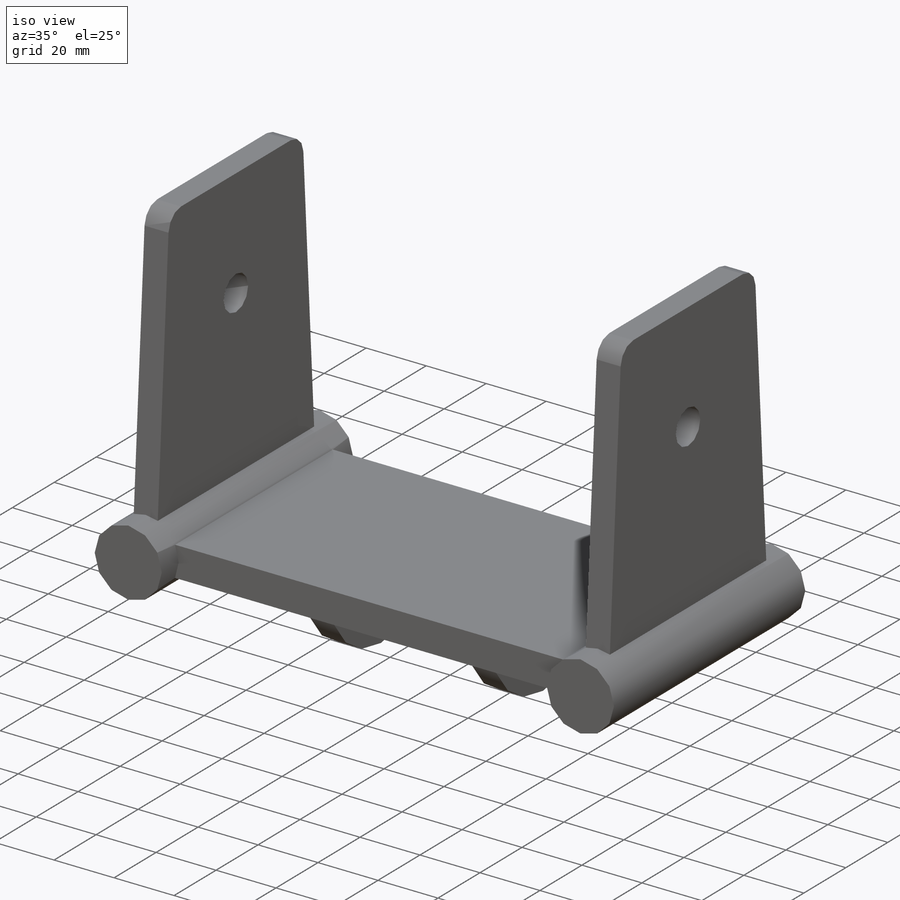
[diagram: iso view]
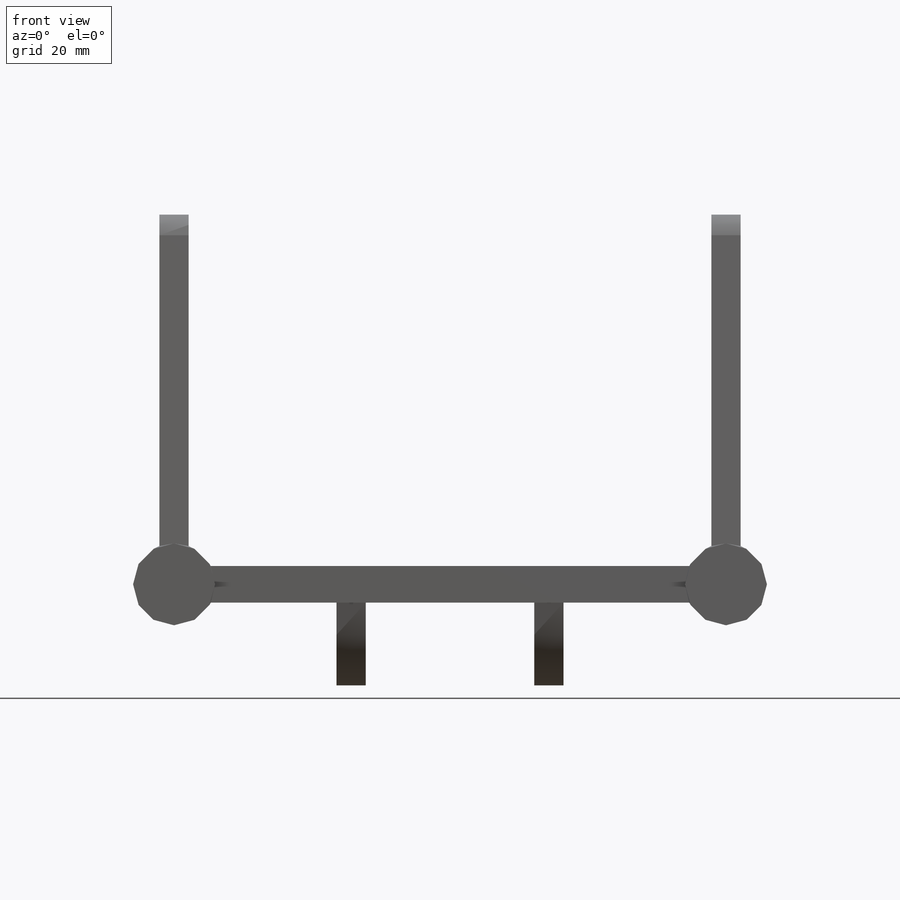
[diagram: front view]
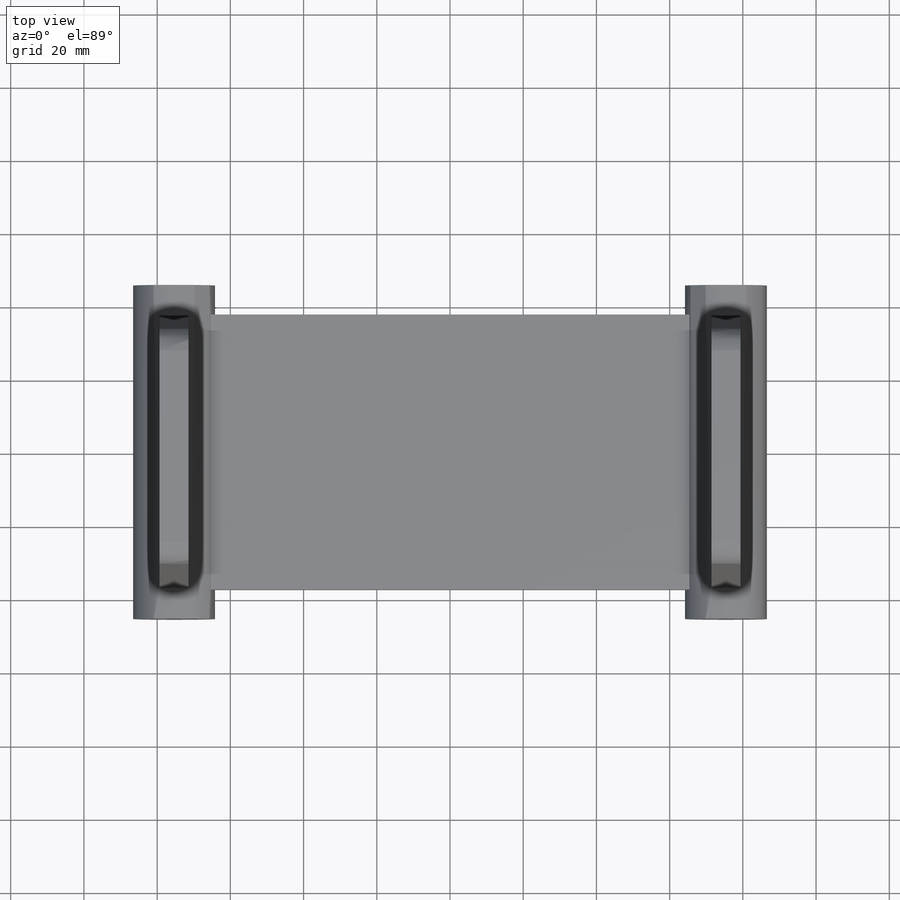
[diagram: top view]
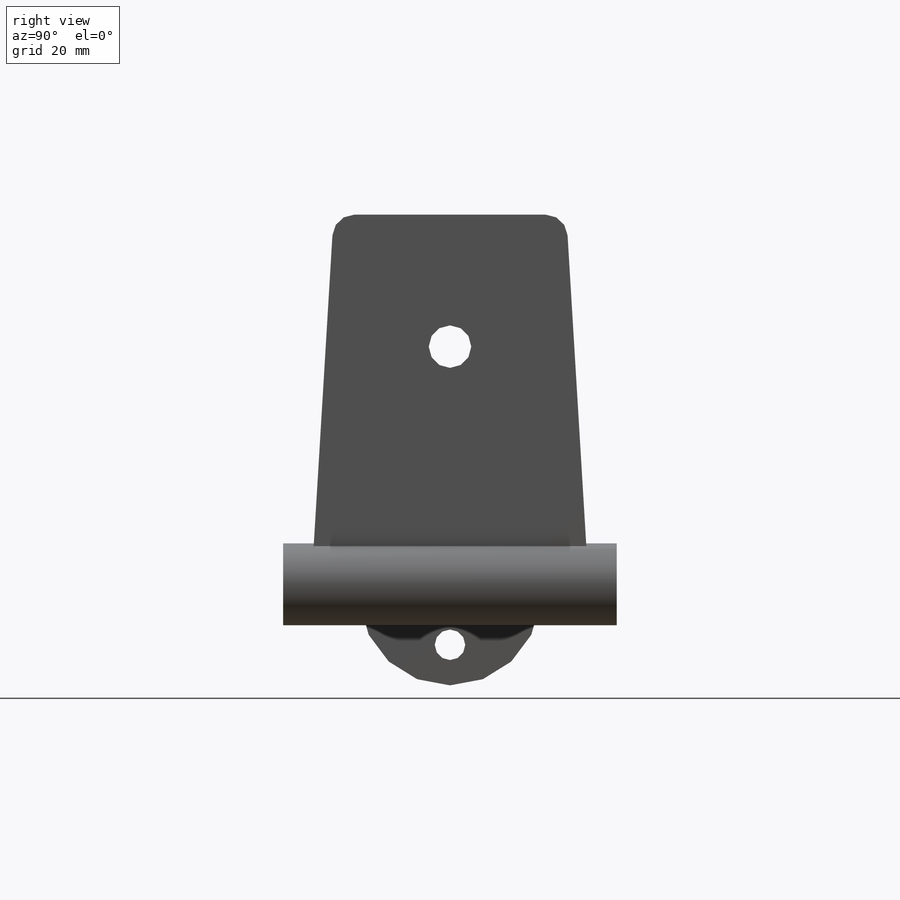
[diagram: right view]
SOLIDWORKS PART (.sldprt)
format: sldprt  version: not decoded by parser v0  size: 281,088 bytes
history: native  units: mm
features: sketch x7, extrude x6, material x1, mirror x1, fillet x1, cut_extrude x1 (+13 scaffold rows collapsed)
feature tree (30):
  scaffold x13  (default folders/planes/origin — collapsed)
  material  "Material <not specified>"
  sketch  "Sketch2"
  extrude  "Boss-Extrude1"  Depth=10mm
  sketch  "Sketch3"
  extrude  "Boss-Extrude3"  [1 undecoded]
  sketch  "Sketch3<2>"  dims[D1=8.0mm]
  sketch  "Sketch6"  dims[D1=5.0mm]
  extrude  "Boss-Extrude5"  Depth=8mm
  extrude  "Boss-Extrude2"  [1 undecoded]
  sketch  "Sketch4"
  extrude  "Boss-Extrude4"  Depth=8mm
  mirror  "Mirror1"
  fillet  "Fillet1"  Radius=6mm
  sketch  "Sketch8"
  extrude  "Boss-Extrude6"  Depth=62mm
  sketch  "Sketch9"
  cut_extrude  "Cut-Extrude1"  Depth=62mm
decode coverage: 8 of 16 modeling features carry decoded parameters
note: 2 parameter values undecoded
note: suppression state not decoded; provenance and decode notes live in map.json
